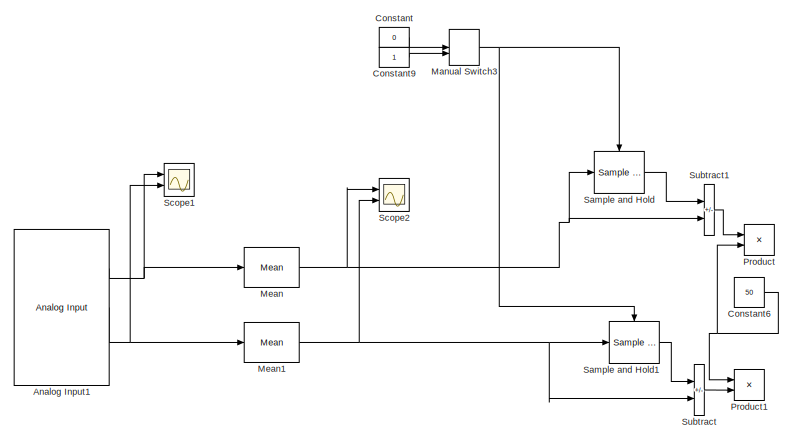
[diagram: root canvas - part 1/2, left side, full height]
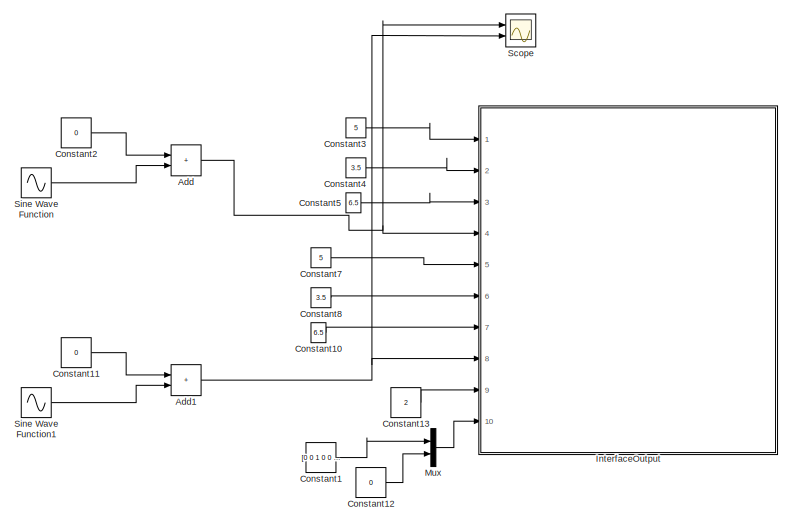
[diagram: root canvas - part 2/2, right side, full height]
MODEL slx_b5ad44982caa
KIND model
CONFIG AbsTol = auto
CONFIG EnableMultiTasking = on
CONFIG FixedStep = 0.001
CONFIG MaxStep = auto
CONFIG MinStep = auto
CONFIG RelTol = 1e-3
CONFIG SampleTimeConstraint = Unconstrained
CONFIG Solver = FixedStepAuto
CONFIG SolverName = FixedStepAuto
CONFIG StartTime = 0.0
CONFIG StopTime = inf
BLOCK [Sum] Add
  IconShape = rectangular
  Ports = [2, 1]
BLOCK [Sum] Add1
  IconShape = rectangular
  Ports = [2, 1]
BLOCK [Reference] Analog Input1  REF=daqlib/Analog Input
  Commented = on
  Ports = [0, 3]
  SourceBlock = daqlib/Analog Input
  SourceProductBaseCode = DA
  SourceType = Analog Input
BLOCK [Constant] Constant
  Commented = on
  Value = 0
BLOCK [Constant] Constant1
  OutDataTypeStr = uint8
  Value = [0 0 1 0 0 0 0 0 0 0 0 0 0]
  VectorParams1D = off
BLOCK [Constant] Constant10
  OutDataTypeStr = double
  Value = 6.5
BLOCK [Constant] Constant11
  OutDataTypeStr = double
  Value = 0
BLOCK [Constant] Constant12
  OutDataTypeStr = uint8
  Value = 0
BLOCK [Constant] Constant13
  OutDataTypeStr = uint8
  Value = 2
BLOCK [Constant] Constant2
  OutDataTypeStr = double
  Value = 0
BLOCK [Constant] Constant3
  OutDataTypeStr = double
  Value = 5
BLOCK [Constant] Constant4
  OutDataTypeStr = double
  Value = 3.5
BLOCK [Constant] Constant5
  OutDataTypeStr = double
  Value = 6.5
BLOCK [Constant] Constant6
  Commented = on
  Value = 50
BLOCK [Constant] Constant7
  OutDataTypeStr = double
  Value = 5
BLOCK [Constant] Constant8
  OutDataTypeStr = double
  Value = 3.5
BLOCK [Constant] Constant9
  Commented = on
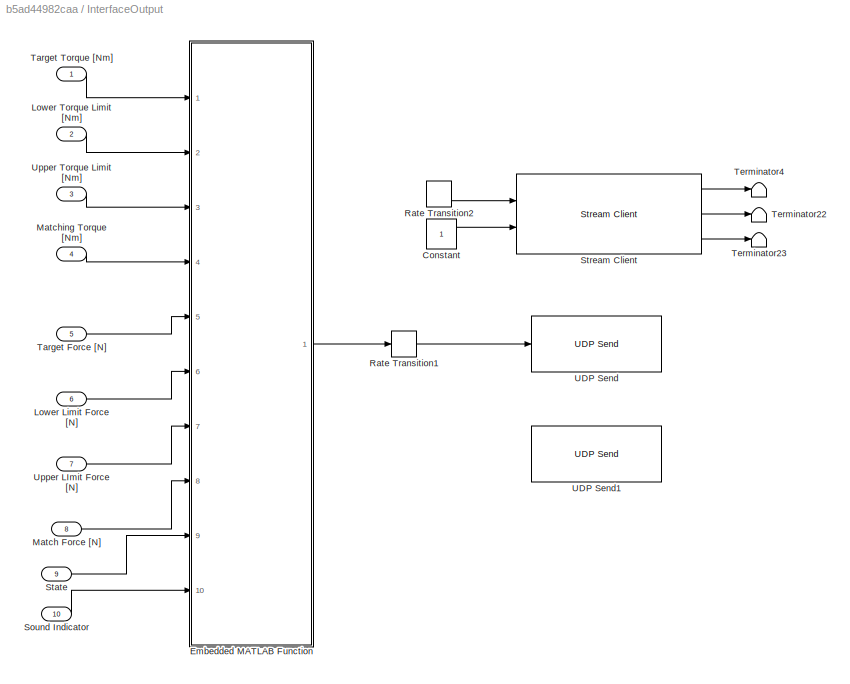
BLOCK [SubSystem] InterfaceOutput
  Ports = [10]
  RequestExecContextInheritance = off
  ShowPortLabels = FromPortBlockName
BLOCK [Constant] InterfaceOutput/Constant
  Commented = on
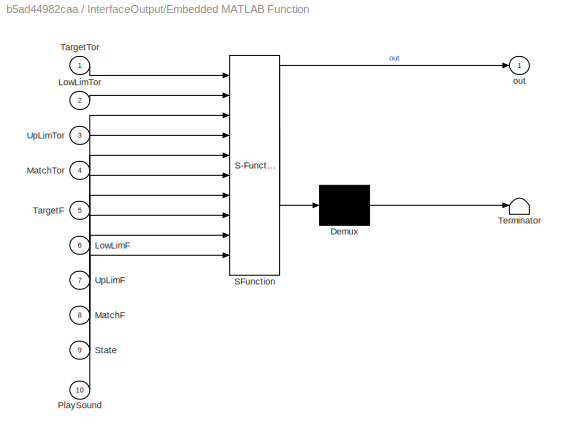
BLOCK [SubSystem] InterfaceOutput/Embedded MATLAB Function
  ErrorFcn = Stateflow.Translate.translate
  PermitHierarchicalResolution = ExplicitOnly
  Ports = [10, 1]
  RequestExecContextInheritance = off
  SFBlockType = MATLAB Function
  TreatAsAtomicUnit = on
BLOCK [Demux] InterfaceOutput/Embedded MATLAB Function/ Demux 
  Outputs = 1
  Ports = [1, 1]
BLOCK [S-Function] InterfaceOutput/Embedded MATLAB Function/ SFunction 
  EnableBusSupport = on
  FunctionName = sf_sfun
  PortCounts = [10 2]
  Ports = [10, 2]
  SFcnIsStateOwnerBlock = off
  SFunctionDeploymentMode = off
  Tag = Stateflow S-Function 1
BLOCK [Terminator] InterfaceOutput/Embedded MATLAB Function/ Terminator 
BLOCK [Inport] InterfaceOutput/Embedded MATLAB Function/LowLimF
  Port = 6
BLOCK [Inport] InterfaceOutput/Embedded MATLAB Function/LowLimTor
  Port = 2
BLOCK [Inport] InterfaceOutput/Embedded MATLAB Function/MatchF
  Port = 8
BLOCK [Inport] InterfaceOutput/Embedded MATLAB Function/MatchTor
  Port = 4
BLOCK [Inport] InterfaceOutput/Embedded MATLAB Function/PlaySound
  Port = 10
BLOCK [Inport] InterfaceOutput/Embedded MATLAB Function/State
  Port = 9
BLOCK [Inport] InterfaceOutput/Embedded MATLAB Function/TargetF
  Port = 5
BLOCK [Inport] InterfaceOutput/Embedded MATLAB Function/TargetTor
BLOCK [Inport] InterfaceOutput/Embedded MATLAB Function/UpLimF
  Port = 7
BLOCK [Inport] InterfaceOutput/Embedded MATLAB Function/UpLimTor
  Port = 3
BLOCK [Outport] InterfaceOutput/Embedded MATLAB Function/out
  VectorParamsAs1DForOutWhenUnconnected = off
BLOCK [Inport] InterfaceOutput/Lower Limit Force [N]
  Port = 6
BLOCK [Inport] InterfaceOutput/Lower Torque Limit [Nm]
  Port = 2
BLOCK [Inport] InterfaceOutput/Match Force [N]
  Port = 8
BLOCK [Inport] InterfaceOutput/Matching Torque [Nm]
  Port = 4
BLOCK [RateTransition] InterfaceOutput/Rate Transition1
  Deterministic = off
  OutPortSampleTime = 0.01
BLOCK [RateTransition] InterfaceOutput/Rate Transition2
  Commented = on
  OutPortSampleTime = 0.01
BLOCK [Inport] InterfaceOutput/Sound Indicator
  Port = 10
BLOCK [Inport] InterfaceOutput/State
  Port = 9
BLOCK [Reference] InterfaceOutput/Stream Client  REF=quarc_library/Communications/Basic/Stream Client
  AttributesFormatString = "udp://192.168.0.103:25000"
  Commented = on
  Ports = [2, 3]
  SourceBlock = quarc_library/Communications/Basic/Stream Client
  SourceProductName = QUARC Targets
  SourceType = Stream Client
BLOCK [Inport] InterfaceOutput/Target Force [N]
  Port = 5
BLOCK [Inport] InterfaceOutput/Target Torque [Nm]
BLOCK [Terminator] InterfaceOutput/Terminator22
BLOCK [Terminator] InterfaceOutput/Terminator23
BLOCK [Terminator] InterfaceOutput/Terminator4
BLOCK [Reference] InterfaceOutput/UDP Send  REF=instrumentlib/UDP Send
  Ports = [1]
  SourceBlock = instrumentlib/UDP Send
  SourceProductBaseCode = IC
  SourceType = UDP Send
BLOCK [Reference] InterfaceOutput/UDP Send1  REF=instrumentlib/UDP Send
  Commented = on
  Ports = [1]
  SourceBlock = instrumentlib/UDP Send
  SourceProductBaseCode = IC
  SourceType = UDP Send
BLOCK [Inport] InterfaceOutput/Upper LImit Force [N]
  Port = 7
BLOCK [Inport] InterfaceOutput/Upper Torque Limit [Nm]
  Port = 3
BLOCK [ManualSwitch] Manual Switch3
  Commented = on
  CurrentSetting = 0
BLOCK [Reference] Mean  REF=dspstat3/Mean
  Commented = on
  Ports = [1, 1]
  SourceBlock = dspstat3/Mean
  SourceProductBaseCode = DS
  SourceType = Mean
  UserDataPersistent = on
BLOCK [Reference] Mean1  REF=dspstat3/Mean
  Commented = on
  Ports = [1, 1]
  SourceBlock = dspstat3/Mean
  SourceProductBaseCode = DS
  SourceType = Mean
  UserDataPersistent = on
BLOCK [Mux] Mux
  DisplayOption = bar
  Inputs = 2
  Ports = [2, 1]
BLOCK [Product] Product
  Commented = on
  Ports = [2, 1]
BLOCK [Product] Product1
  Commented = on
  Ports = [2, 1]
BLOCK [Reference] Sample and Hold  REF=dspsigops/Sample
and Hold
  Commented = on
  Ports = [1, 1, 0, 1]
  SourceBlock = dspsigops/Sample\nand Hold
  SourceProductBaseCode = DS
  SourceType = Sample and Hold
BLOCK [Reference] Sample and Hold1  REF=dspsigops/Sample
and Hold
  Commented = on
  Ports = [1, 1, 0, 1]
  SourceBlock = dspsigops/Sample\nand Hold
  SourceProductBaseCode = DS
  SourceType = Sample and Hold
BLOCK [Scope] Scope
  Floating = off
  NumInputPorts = 2
  Ports = [2]
  ScopeSpecificationString = Simulink.scopes.TimeScopeBlockCfg('CurrentConfiguration', extmgr.ConfigurationSet(extmgr.Configuration('Core','General UI',true),extmgr.Configuration('Core','Source UI',true),extmgr.Configuration('Sources','WiredSimulink',true),extmgr.Configuration('Visuals','Time Domain',true,'SerializedDisplays',{struct('MinYLimReal','-9.11605','MaxYLimReal','12.04445','YLabelReal','','MinYLimMag','0.00000','Max...<+1434ch>
BLOCK [Scope] Scope1
  Commented = on
  Floating = off
  NumInputPorts = 2
  Ports = [2]
  ScopeSpecificationString = Simulink.scopes.TimeScopeBlockCfg('CurrentConfiguration', extmgr.ConfigurationSet(extmgr.Configuration('Core','General UI',true),extmgr.Configuration('Core','Source UI',true),extmgr.Configuration('Sources','WiredSimulink',true,'DataLoggingVariableName','ScopeData1'),extmgr.Configuration('Visuals','Time Domain',true,'SerializedDisplays',{struct('MinYLimReal','0.72267','MaxYLimReal','0.84428','YLabe...<+2223ch>
BLOCK [Scope] Scope2
  Commented = on
  Floating = off
  NumInputPorts = 2
  Ports = [2]
  ScopeSpecificationString = Simulink.scopes.TimeScopeBlockCfg('CurrentConfiguration', extmgr.ConfigurationSet(extmgr.Configuration('Core','General UI',true),extmgr.Configuration('Core','Source UI',true),extmgr.Configuration('Sources','WiredSimulink',true,'DataLoggingVariableName','ScopeData2'),extmgr.Configuration('Visuals','Time Domain',true,'SerializedDisplays',{struct('MinYLimReal','0.5848','MaxYLimReal','0.82764','YLabel...<+1395ch>
BLOCK [Sin] Sine Wave Function
  Amplitude = 7
  Frequency = 0.5
  Ports = [0, 1]
  SampleTime = 0
BLOCK [Sin] Sine Wave Function1
  Amplitude = 5
  Bias = 5
  Frequency = 0.5
  Phase = pi/3
  Ports = [0, 1]
  SampleTime = 0
BLOCK [Sum] Subtract
  Commented = on
  IconShape = rectangular
  Inputs = -+
  Ports = [2, 1]
BLOCK [Sum] Subtract1
  Commented = on
  IconShape = rectangular
  Inputs = -+
  Ports = [2, 1]
NET Add1:1 -> InterfaceOutput:8, Scope:2
NET Add:1 -> InterfaceOutput:4, Scope:1
NET Analog Input1:1 -> Mean:1, Scope1:1
NET Analog Input1:2 -> Mean1:1, Scope1:2
LINE Constant10:1 -> InterfaceOutput:7
LINE Constant11:1 -> Add1:1
LINE Constant12:1 -> Mux:2
LINE Constant13:1 -> InterfaceOutput:9
LINE Constant1:1 -> Mux:1
LINE Constant2:1 -> Add:1
LINE Constant3:1 -> InterfaceOutput:1
LINE Constant4:1 -> InterfaceOutput:2
LINE Constant5:1 -> InterfaceOutput:3
NET Constant6:1 -> Product1:1, Product:2
LINE Constant7:1 -> InterfaceOutput:5
LINE Constant8:1 -> InterfaceOutput:6
LINE Constant9:1 -> Manual Switch3:2
LINE Constant:1 -> Manual Switch3:1
LINE InterfaceOutput/Constant:1 -> InterfaceOutput/Stream Client:2
LINE InterfaceOutput/Embedded MATLAB Function:1 -> InterfaceOutput/Rate Transition1:1
LINE InterfaceOutput/Lower Limit Force [N]:1 -> InterfaceOutput/Embedded MATLAB Function:6
LINE InterfaceOutput/Lower Torque Limit [Nm]:1 -> InterfaceOutput/Embedded MATLAB Function:2
LINE InterfaceOutput/Match Force [N]:1 -> InterfaceOutput/Embedded MATLAB Function:8
LINE InterfaceOutput/Matching Torque [Nm]:1 -> InterfaceOutput/Embedded MATLAB Function:4
LINE InterfaceOutput/Rate Transition1:1 -> InterfaceOutput/UDP Send:1
LINE InterfaceOutput/Rate Transition2:1 -> InterfaceOutput/Stream Client:1
LINE InterfaceOutput/Sound Indicator:1 -> InterfaceOutput/Embedded MATLAB Function:10
LINE InterfaceOutput/State:1 -> InterfaceOutput/Embedded MATLAB Function:9
LINE InterfaceOutput/Stream Client:1 -> InterfaceOutput/Terminator4:1
LINE InterfaceOutput/Stream Client:2 -> InterfaceOutput/Terminator22:1
LINE InterfaceOutput/Stream Client:3 -> InterfaceOutput/Terminator23:1
LINE InterfaceOutput/Target Force [N]:1 -> InterfaceOutput/Embedded MATLAB Function:5
LINE InterfaceOutput/Target Torque [Nm]:1 -> InterfaceOutput/Embedded MATLAB Function:1
LINE InterfaceOutput/Upper LImit Force [N]:1 -> InterfaceOutput/Embedded MATLAB Function:7
LINE InterfaceOutput/Upper Torque Limit [Nm]:1 -> InterfaceOutput/Embedded MATLAB Function:3
NET Manual Switch3:1 -> Sample and Hold1:trigger, Sample and Hold:trigger
NET Mean1:1 -> Sample and Hold1:1, Scope2:2, Subtract:2
NET Mean:1 -> Sample and Hold:1, Scope2:1, Subtract1:2
LINE Mux:1 -> InterfaceOutput:10
LINE Sample and Hold1:1 -> Subtract:1
LINE Sample and Hold:1 -> Subtract1:1
LINE Sine Wave Function1:1 -> Add1:2
LINE Sine Wave Function:1 -> Add:2
LINE Subtract1:1 -> Product:1
LINE Subtract:1 -> Product1:2
note: NET lines group one-source signal fan-out (src -> all destinations, sorted); 1:1 wires keep LINE
CHART InterfaceOutput/Embedded
MATLAB Function states=1 transitions=1
  STATE_LABEL 'eML_blk_kernel()'
  STATE_LABEL "SCRIPT:\n%function out = fcn(TargetTor,LowLimTor,UpLimTor,MatchTor,PlaySound)\n\nfunction out = fcn(TargetTor,LowLimTor,UpLimTor,MatchTor,TargetF, LowLimF, UpLimF, MatchF, State, PlaySound)\n\n%     out = uint8(zeros(4*8+14,1));\n% \n%     out(1:8)    = uint8(typecast(double(TargetTor),'uint8'));\n%     out(9:16)   = uint8(typecast(double(LowLimTor),'uint8'));\n%     out(17:24)  = uint8(typecast(double(UpL...<+940ch>"
CHART  states=0 transitions=0
